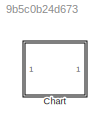
MODEL slx_9b5c0b24d673
KIND model
CONFIG AbsTol = auto
CONFIG EnableMultiTasking = off
CONFIG FixedStep = auto
CONFIG MaxStep = auto
CONFIG MinStep = auto
CONFIG RelTol = 1e-3
CONFIG SampleTimeConstraint = Unconstrained
CONFIG SolverName = VariableStepAuto
CONFIG StartTime = 0.0
CONFIG StopTime = 10.0
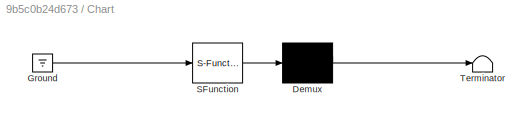
BLOCK [SubSystem] Chart
  ErrorFcn = Stateflow.Translate.translate
  PermitHierarchicalResolution = ExplicitOnly
  SFBlockType = Chart
  TreatAsAtomicUnit = on
BLOCK [Demux] Chart/ Demux 
  Outputs = 1
BLOCK [Ground] Chart/ Ground 
BLOCK [S-Function] Chart/ SFunction 
  EnableBusSupport = off
  FunctionName = sf_sfun
  PortCounts = [1 1]
  SFcnIsStateOwnerBlock = off
  SFunctionDeploymentMode = off
  Tag = Stateflow S-Function 3
BLOCK [Terminator] Chart/ Terminator 
CHART Chart states=31 transitions=27
  STATE_LABEL 'PING'
  STATE_LABEL '?'
  STATE_LABEL '?'
  STATE_LABEL 'HEARTBEAT'
  STATE_LABEL 'COMMAND'
  STATE_LABEL '?'
  STATE_LABEL '?'
  STATE_LABEL 'MISSION'
  STATE_LABEL 'MISSION_DOWNLOAD'
  STATE_LABEL '?'
  STATE_LABEL 'MISSION_COUNT'
  STATE_LABEL 'MISSION_REQUEST_INT'
  STATE_LABEL 'MISSION_ITEM_INT'
  STATE_LABEL 'MISSION_ACK'
  STATE_LABEL 'MISSION_IDEL'
  STATE_LABEL 'MISSION_CLEAR_ALL'
  STATE_LABEL '?'
  STATE_LABEL 'MISSION_SET_CURRENT'
  STATE_LABEL '?'
  STATE_LABEL 'MISSION_UPLOAD'
  STATE_LABEL '?'
  STATE_LABEL 'MISSION_REQUEST_INT'
  STATE_LABEL 'MISSION_ITEM_INT'
  STATE_LABEL 'MISSION_ACK'
  STATE_LABEL 'MISSION_REQUEST_LIST'
  STATE_LABEL 'MISSION_COUNT'
  STATE_LABEL 'MISSION_DOWNLOAD'
  STATE_LABEL '?'
  STATE_LABEL 'MISSION_COUNT'
  STATE_LABEL 'MISSION_REQUEST_INT'
  STATE_LABEL 'MISSION_ITEM_INT'
  STATE_LABEL 'MISSION_ACK'
  STATE_LABEL '?'
  STATE_LABEL 'MISSION_COUNT'
  STATE_LABEL 'MISSION_REQUEST_INT'
  STATE_LABEL 'MISSION_ITEM_INT'
  STATE_LABEL 'MISSION_ACK'
  STATE_LABEL 'MISSION_IDEL'
  STATE_LABEL 'MISSION_CLEAR_ALL'
  STATE_LABEL '?'
CHART  states=0 transitions=0
